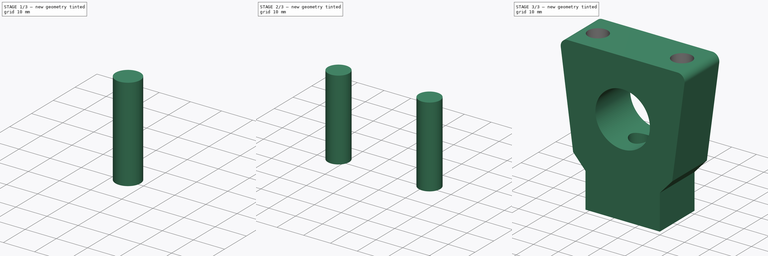
[diagram: build sequence overview — one tinted view per stage of 3, left to right]
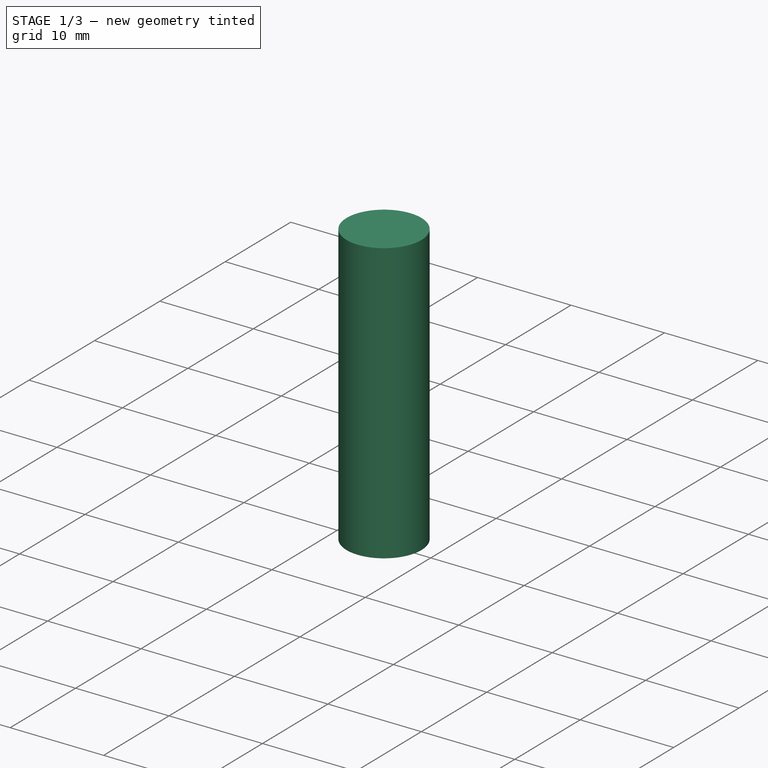
[diagram: stage 1 of 3 — iso view after this stage's code; geometry added in this stage tinted green]
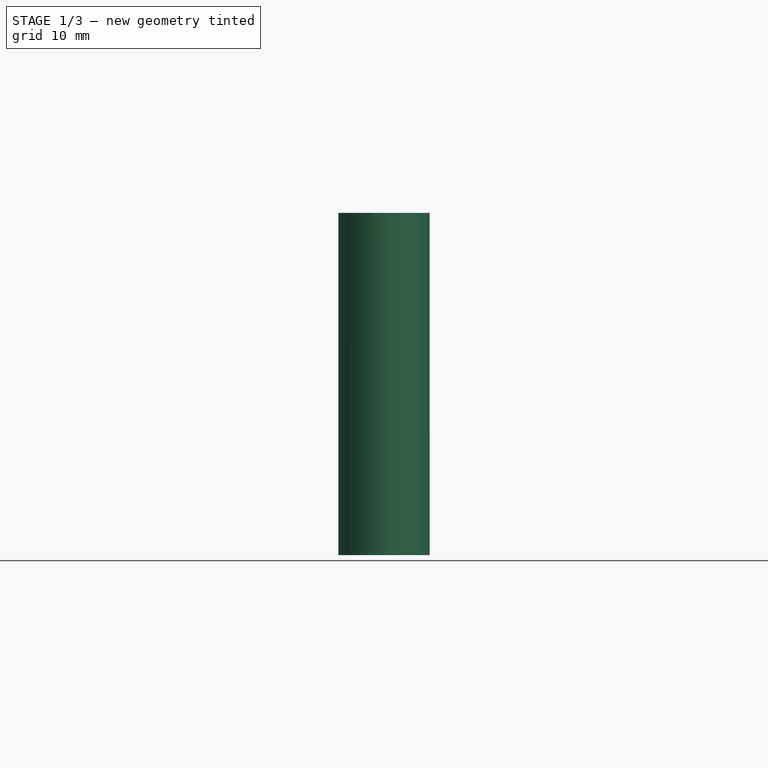
[diagram: stage 1 of 3 — front view after this stage's code; geometry added in this stage tinted green]
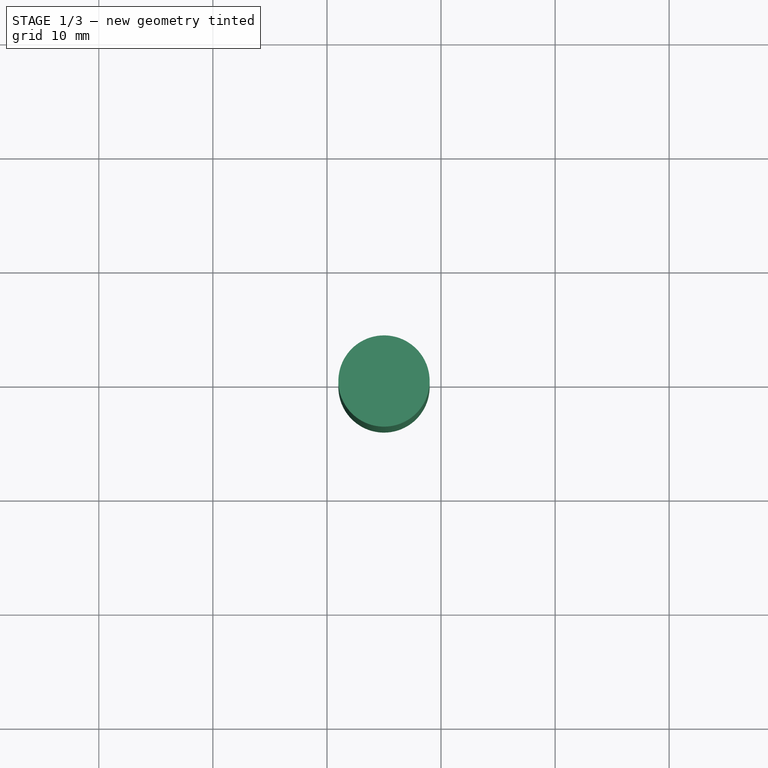
[diagram: stage 1 of 3 — top view after this stage's code; geometry added in this stage tinted green]
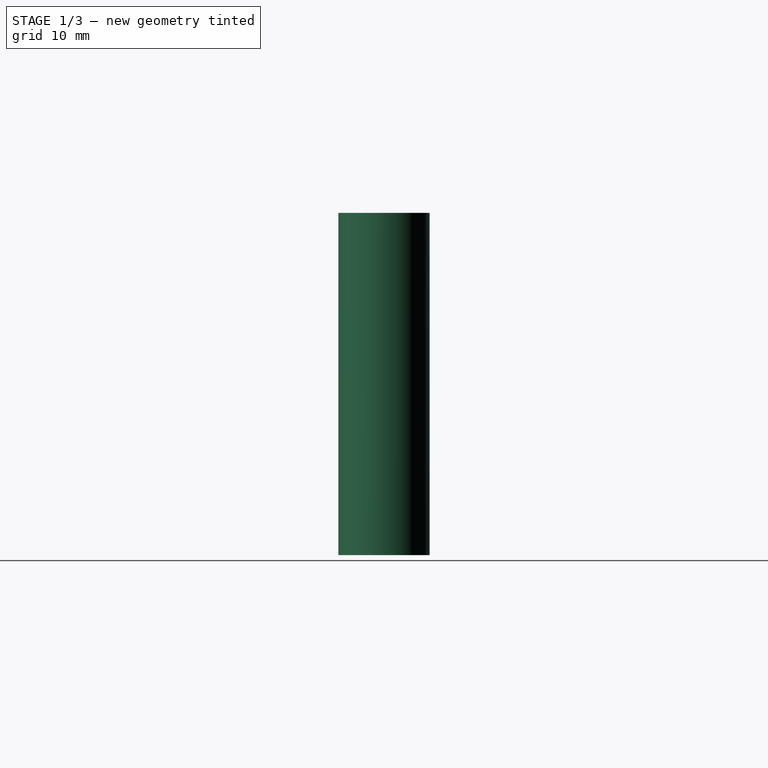
[diagram: stage 1 of 3 — right view after this stage's code; geometry added in this stage tinted green]
FCSTD DOCUMENT  (FreeCAD 0.18.4R)
Label: riser22mm
License: All rights reserved
LicenseURL: http://en.wikipedia.org/wiki/All_rights_reserved
objects: Sketcher::SketchObject×3, Part::Extrusion×3, Part::Cut×2, PartDesign::FeatureBase×1, PartDesign::Body×1
note: 10 computed .brp shape members not serialized (recipe doc carries the construction recipe); baked Part::Feature solids carry a one-line shape summary decoded from their .brp

FEATURE [Sketcher::SketchObject] Sketch
  MapMode = 5
  Placement = pos=(-15,0,-30) rot=(1,0,0;1.5708rad)
  sketch-geometry (11):
    g0: LineSegment StartX=-22.1794 StartY=60 StartZ=0 EndX=22.1794 EndY=60 EndZ=0
    g1: LineSegment StartX=25 StartY=56.7735 StartZ=0 EndX=20 EndY=19.6942 EndZ=0
    g2: LineSegment StartX=20 StartY=19.6942 StartZ=0 EndX=15 EndY=14.1412 EndZ=0
    g3: LineSegment StartX=15 StartY=14.1412 StartZ=0 EndX=15 EndY=0 EndZ=0
    g4: LineSegment StartX=15 StartY=0 StartZ=0 EndX=-15 EndY=0 EndZ=0
    g5: LineSegment StartX=-15 StartY=0 StartZ=0 EndX=-15 EndY=14.1412 EndZ=0
    g6: LineSegment StartX=-15 StartY=14.1412 StartZ=0 EndX=-20 EndY=19.6942 EndZ=0
    g7: LineSegment StartX=-20 StartY=19.6942 StartZ=0 EndX=-25 EndY=56.7735 EndZ=0
    g8: ArcOfCircle CenterX=22.1794 CenterY=57.1539 CenterZ=0 NormalX=0 NormalY=0 NormalZ=1 AngleXU=0 Radius=2.84612 StartAngle=6.14915 EndAngle=7.85398
    g9: ArcOfCircle CenterX=-22.1794 CenterY=57.1539 CenterZ=0 NormalX=0 NormalY=0 NormalZ=1 AngleXU=0 Radius=2.84612 StartAngle=1.5708 EndAngle=3.27563
    g10: Circle CenterX=0 CenterY=36.9688 CenterZ=0 NormalX=0 NormalY=0 NormalZ=1 AngleXU=0 Radius=11
  constraints (23):
    c: Vertical(g3)
    c: Coincident(g3,g4)
    c: PointOnObject(g4,g-1)
    c: Coincident(g4,g5)
    c: Coincident(g5,g6)
    c: Coincident(g6,g7)
    c: Symmetric(g3,g4,g-2)
    c: Coincident(g2,g1)
    c: Coincident(g2,g3)
    c: Symmetric(g2,g5,g-2)
    c: Symmetric(g1,g6,g-2)
    c: Tangent(g0,g8) = 1.5708
    c: Tangent(g1,g8) = 1.5708
    c: Tangent(g0,g9) = 1.5708
    c: Tangent(g7,g9) = 1.5708
    c: Equal(g8,g9)
    c: Symmetric(g0,g0,g-2)
    c: DistanceX(g-1,g1) = 25
    c: DistanceX(g3) = 15
    c: DistanceX(g1) = 20
    c: DistanceY(g0) = 60
    c: DistanceX(g10) = 0
    c: Diameter(g10) = 22
FEATURE [Part::Extrusion] Extrude
  Base = -> Sketch
  Dir = (0,1,0)
  DirMode = 0
  FaceMakerClass = Part::FaceMakerBullseye
  LengthFwd = 20
  LengthRev = 0
  Reversed = true
  Solid = true
  Symmetric = true
FEATURE [Sketcher::SketchObject] Sketch001
  MapMode = 5
  Placement = pos=(0,0,-30) rot=(1,0,0;3.14159rad)
  Support = -> [Extrude]
  sketch-geometry (1):
    g0: Circle CenterX=-15 CenterY=0 CenterZ=0 NormalX=0 NormalY=0 NormalZ=1 AngleXU=0 Radius=4
  constraints (3):
    c: Diameter(g0) = 8
    c: DistanceY(g0) = 0
    c: DistanceX(g0) = -15
FEATURE [Part::Extrusion] Extrude001
  Base = -> Sketch001
  Dir = (0,0,-1)
  DirMode = 2
  FaceMakerClass = Part::FaceMakerBullseye
  LengthFwd = -30
  LengthRev = 0
  Solid = true
  Symmetric = false
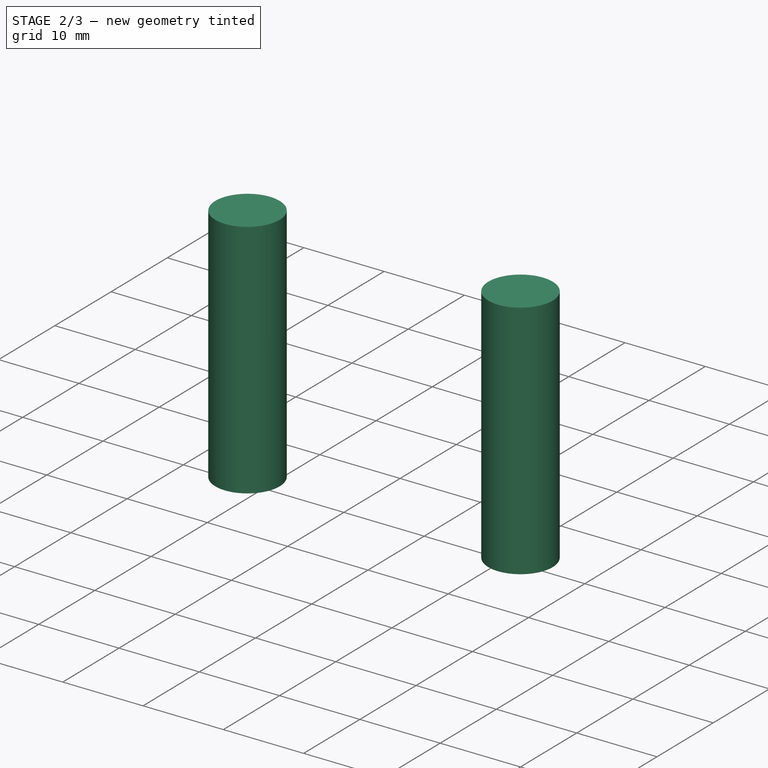
[diagram: stage 2 of 3 — iso view after this stage's code; geometry added in this stage tinted green]
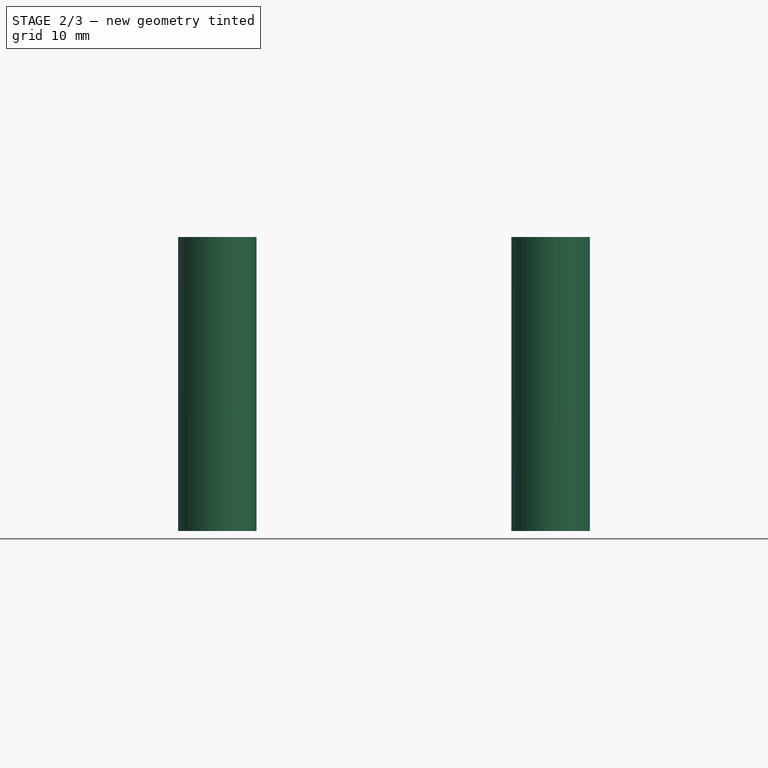
[diagram: stage 2 of 3 — front view after this stage's code; geometry added in this stage tinted green]
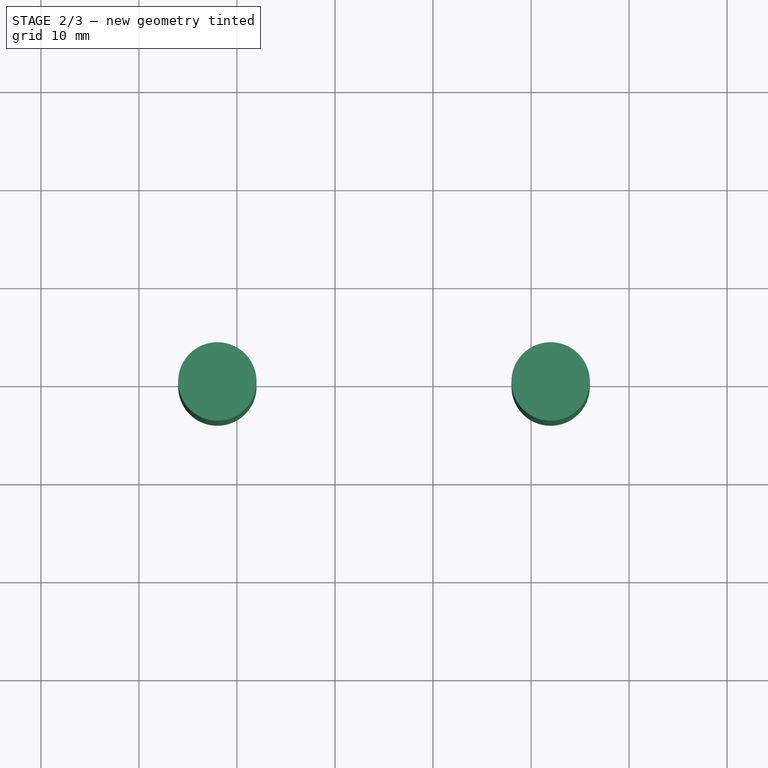
[diagram: stage 2 of 3 — top view after this stage's code; geometry added in this stage tinted green]
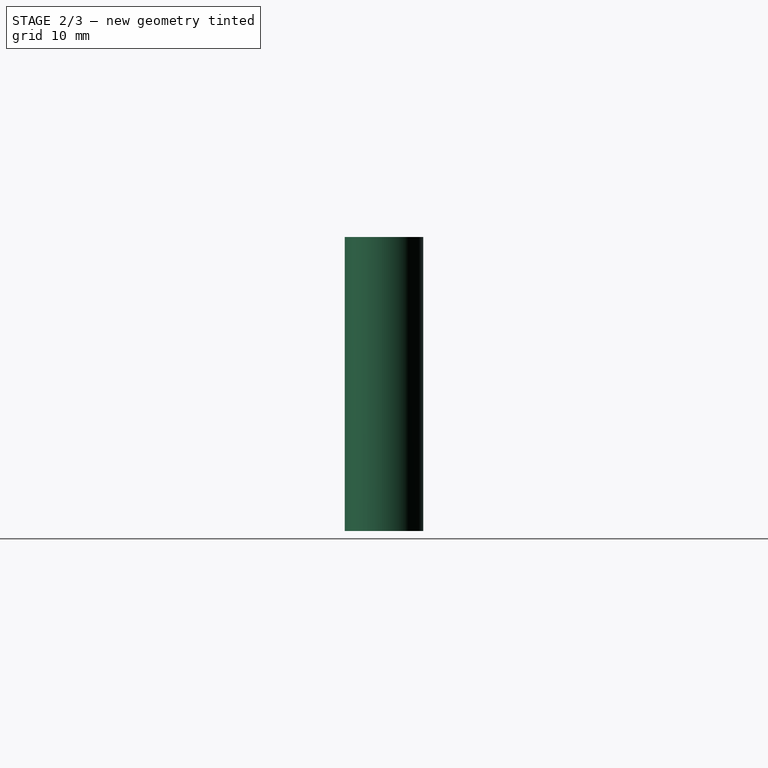
[diagram: stage 2 of 3 — right view after this stage's code; geometry added in this stage tinted green]
FEATURE [Part::Cut] Cut
  Base = -> Extrude
  Tool = -> Extrude001
FEATURE [Sketcher::SketchObject] Sketch002
  MapMode = 5
  Placement = pos=(0,0,30) rot=(0,0,1;0rad)
  Support = -> [Cut]
  sketch-geometry (2):
    g0: Circle CenterX=2 CenterY=0 CenterZ=0 NormalX=0 NormalY=0 NormalZ=1 AngleXU=0 Radius=4
    g1: Circle CenterX=-32 CenterY=0 CenterZ=0 NormalX=0 NormalY=0 NormalZ=1 AngleXU=0 Radius=4
  constraints (6):
    c: DistanceY(g0) = 0
    c: Diameter(g0) = 8
    c: Diameter(g1) = 8
    c: DistanceX(g0) = 2
    c: Distance(g1,g0) = 34
    c: DistanceY(g1) = 0
FEATURE [Part::Extrusion] Extrude002
  Base = -> Sketch002
  Dir = (0,0,1)
  DirMode = 2
  FaceMakerClass = Part::FaceMakerBullseye
  LengthFwd = -30
  LengthRev = 0
  Solid = true
  Symmetric = false
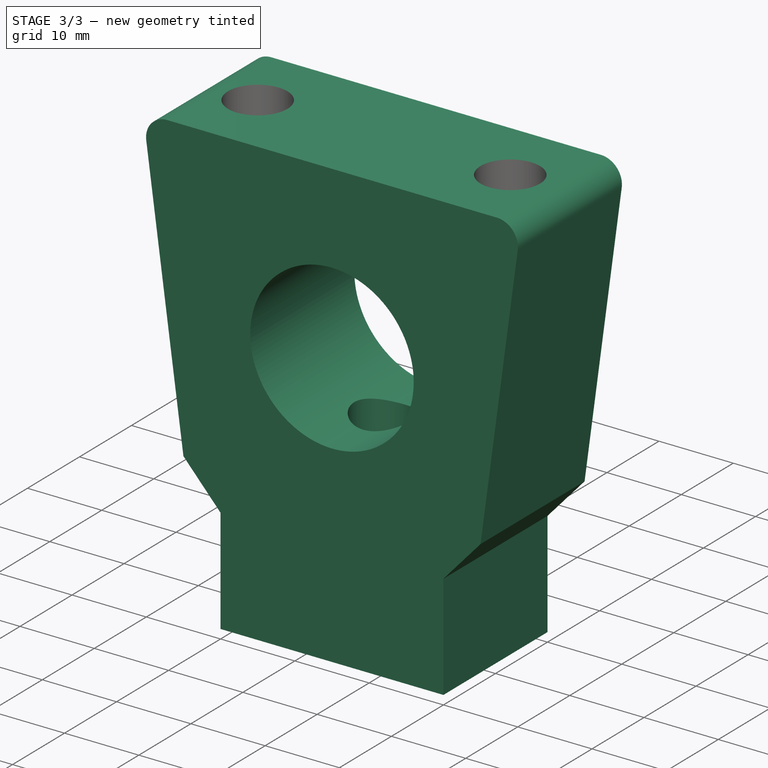
[diagram: stage 3 of 3 — iso view after this stage's code; geometry added in this stage tinted green]
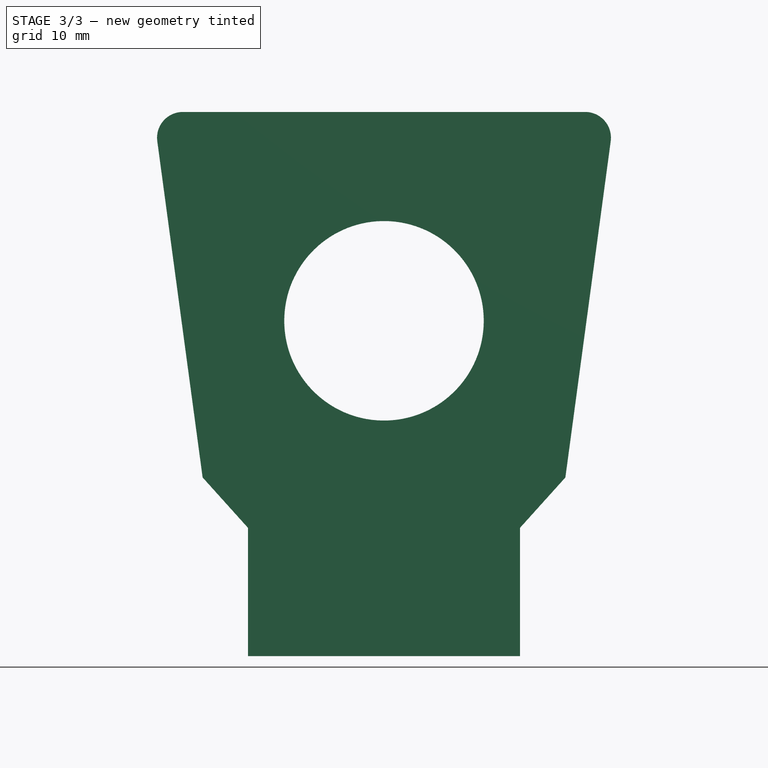
[diagram: stage 3 of 3 — front view after this stage's code; geometry added in this stage tinted green]
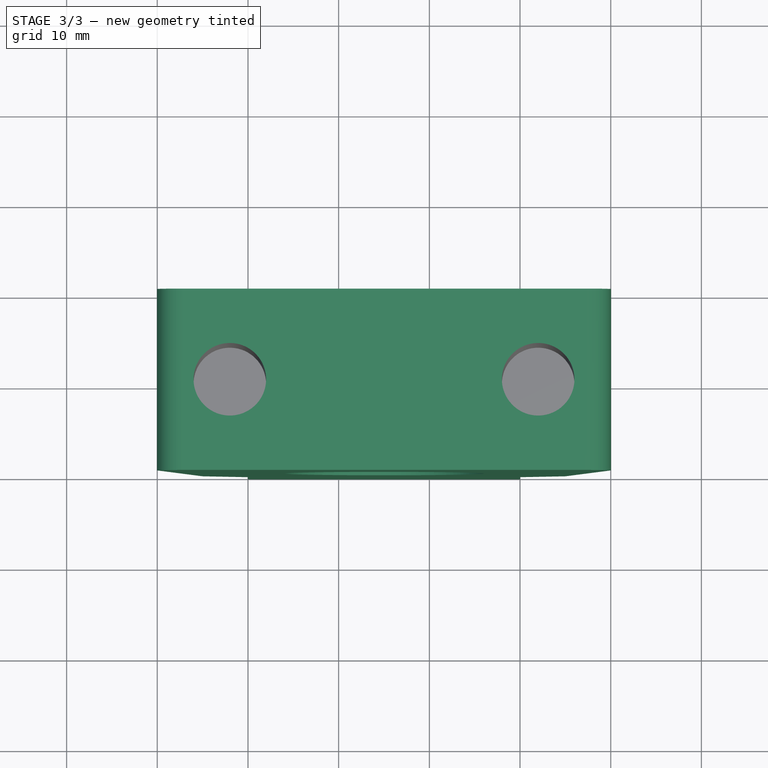
[diagram: stage 3 of 3 — top view after this stage's code; geometry added in this stage tinted green]
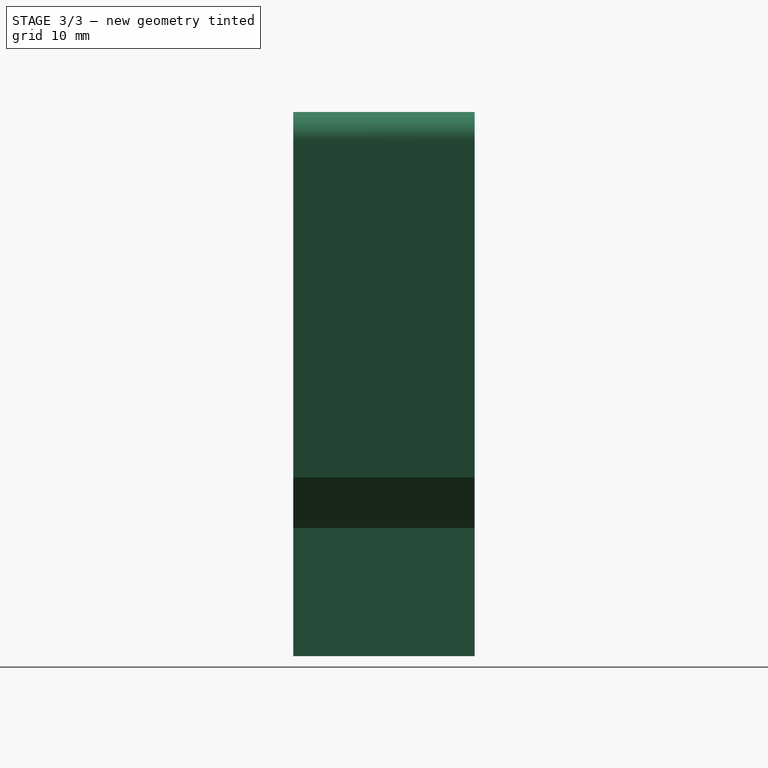
[diagram: stage 3 of 3 — right view after this stage's code; geometry added in this stage tinted green]
FEATURE [Part::Cut] Cut001
  Base = -> Cut
  Tool = -> Extrude002
FEATURE [PartDesign::FeatureBase] BaseFeature
  BaseFeature = -> Cut001
FEATURE [PartDesign::Body] Body
  BaseFeature = -> Cut001
  Group = -> [BaseFeature,Sketch001,Sketch002]
  Origin = -> Origin
  Tip = -> BaseFeature
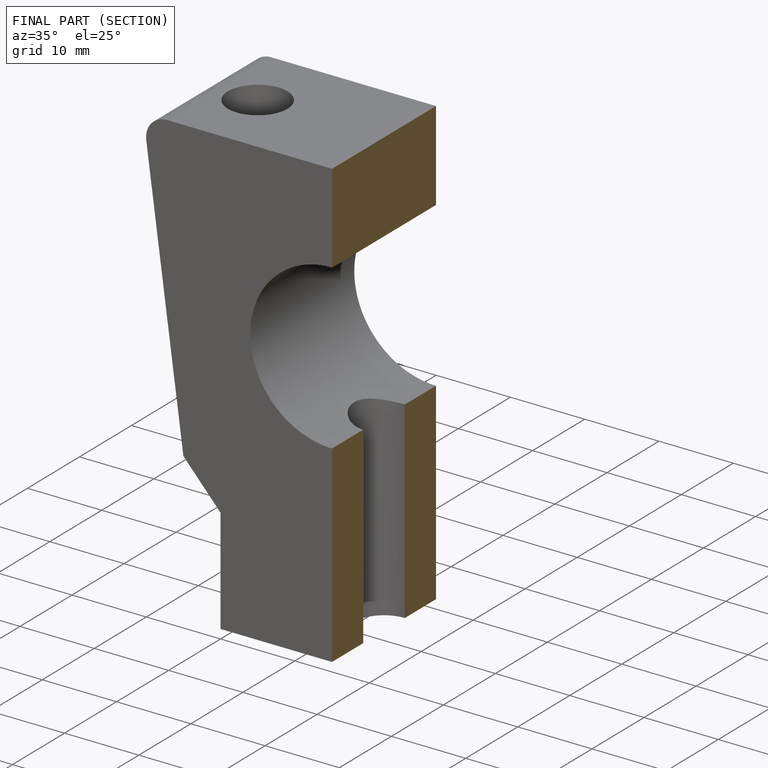
[diagram: finished part — half-section view (interior)]
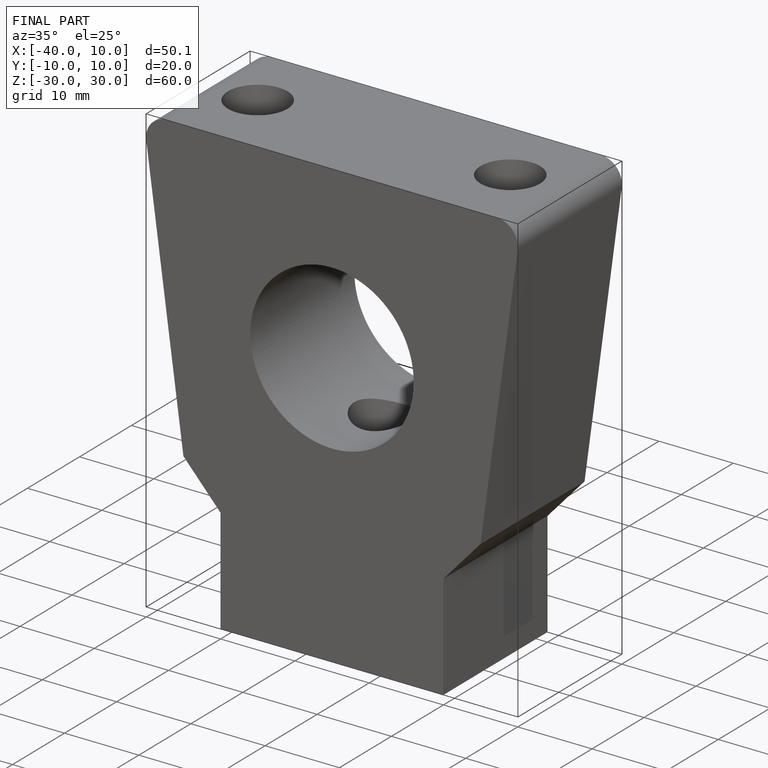
[diagram: finished part — iso view with bounding-box wireframe]
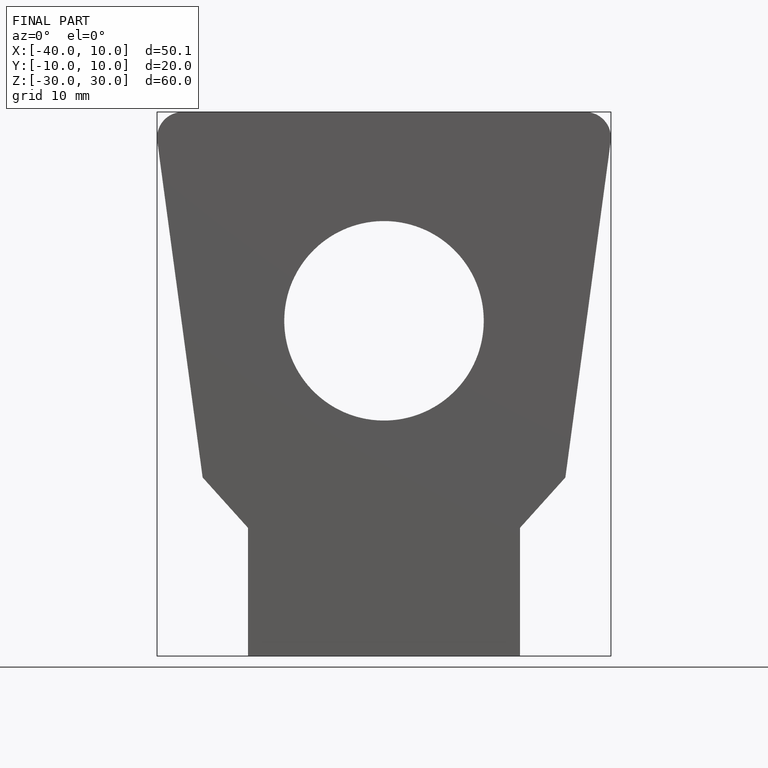
[diagram: finished part — front view with bounding-box wireframe]
